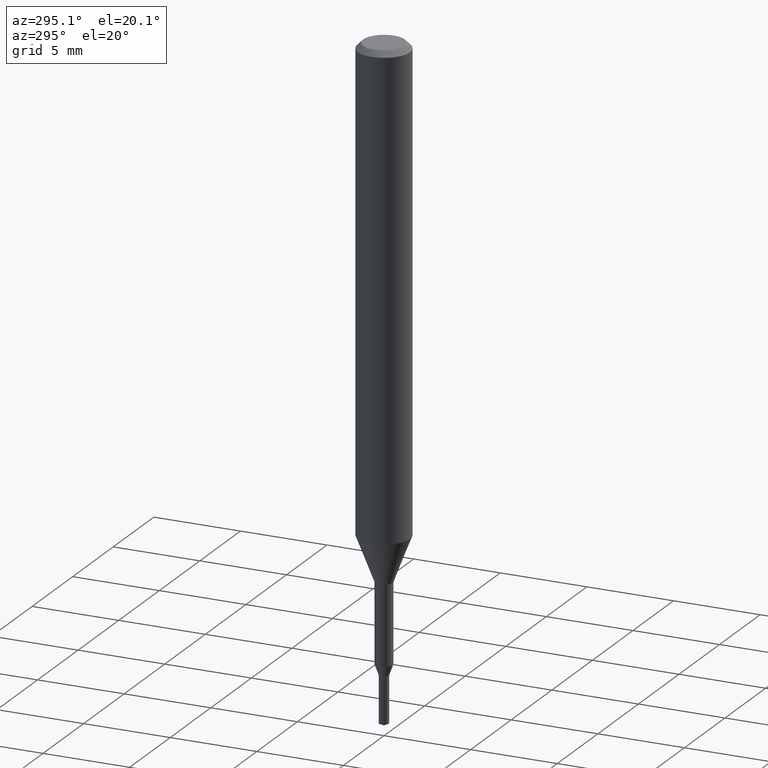
[diagram: clean part render]
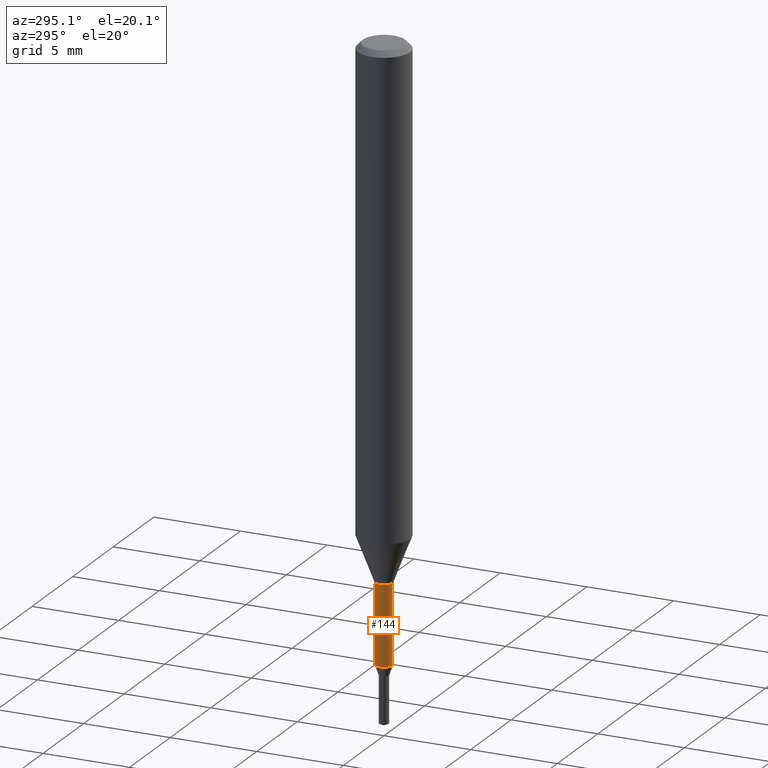
[diagram: same view with one face highlighted and labeled with its STEP entity id]
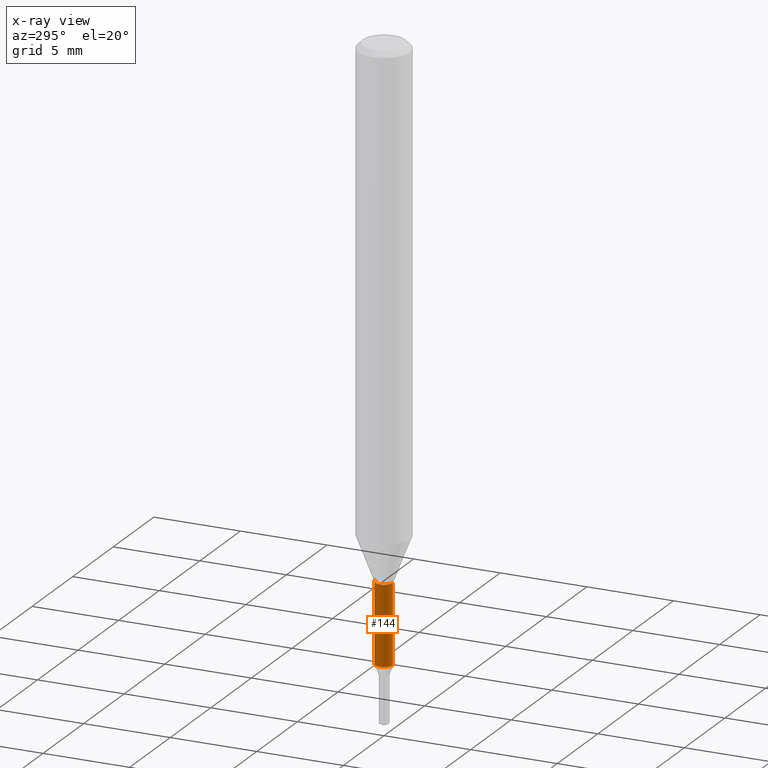
[diagram: x-ray of the same camera — body ghosted, the highlighted face saturated]
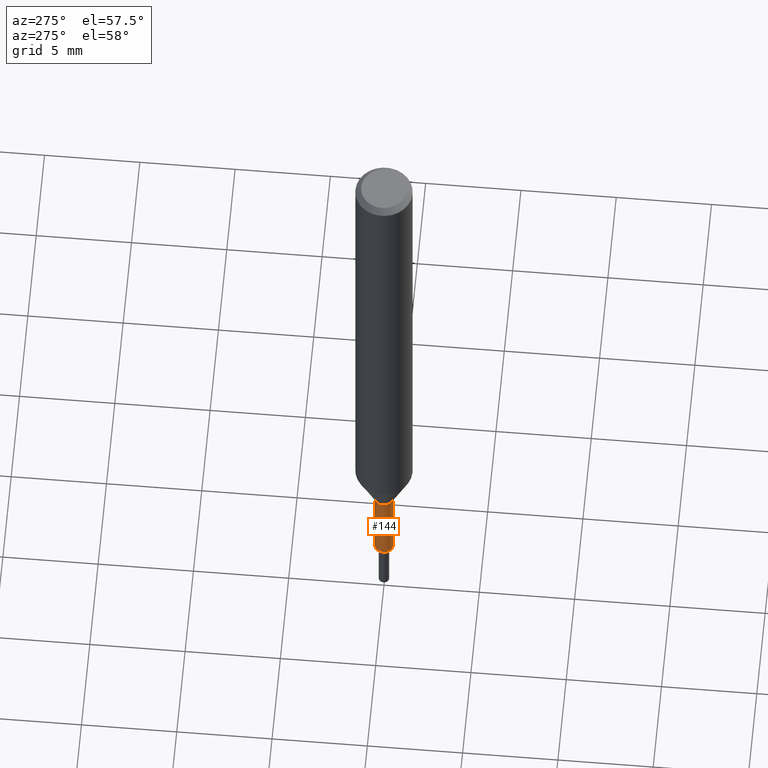
[diagram: same view with one face highlighted and labeled with its STEP entity id]
A machine part, auxiliary view. The second image highlights one B-rep face of the part: STEP entity #144.
The next image is the same camera in x-ray: the body ghosted, the highlighted face saturated — about 0% of this face is hidden behind the body in this view.
A second angle (auxiliary view) of the same face is appended — the face is thin or edge-on in the first view.
In plain terms, the highlighted cylindrical surface (edge-blend (fillet) strip) has radius 0.5 mm, axis along (-0, -0, 1).
Its self-contained STEP definition (entity closure, byte-faithful):
#144=ADVANCED_FACE('',(#324),#325,.T.);
#178=VERTEX_POINT('',#365);
#182=EDGE_CURVE('',#248,#236,#369,.T.);
#200=EDGE_CURVE('',#178,#248,#388,.T.);
#202=EDGE_CURVE('',#222,#236,#390,.T.);
#210=EDGE_CURVE('',#222,#178,#400,.T.);
#222=VERTEX_POINT('',#412);
#236=VERTEX_POINT('',#429);
#248=VERTEX_POINT('',#442);
#324=FACE_OUTER_BOUND('',#520,.T.);
#325=CYLINDRICAL_SURFACE('',#521,0.49995);
#365=CARTESIAN_POINT('',(6.12241946593498E-017,-0.49995,-30.0));
#369=LINE('',#573,#574);
#388=CIRCLE('',#603,0.49995);
#390=CIRCLE('',#606,0.49995);
#400=LINE('',#618,#619);
#412=CARTESIAN_POINT('',(6.12241946593498E-017,-0.49995,-34.582));
#429=CARTESIAN_POINT('',(0.0,0.49995,-34.582));
#442=CARTESIAN_POINT('',(0.0,0.49995,-30.0));
#520=EDGE_LOOP('',(#745,#746,#747,#748));
#521=AXIS2_PLACEMENT_3D('',#749,#750,#751);
#573=CARTESIAN_POINT('',(-6.12241946593498E-017,0.49995,-32.291));
#574=VECTOR('',#806,1.0);
#603=AXIS2_PLACEMENT_3D('',#827,#828,#829);
#606=AXIS2_PLACEMENT_3D('',#830,#831,#832);
#618=CARTESIAN_POINT('',(6.12241946593498E-017,-0.49995,-32.291));
#619=VECTOR('',#852,1.0);
#745=ORIENTED_EDGE('',*,*,#182,.T.);
#746=ORIENTED_EDGE('',*,*,#202,.F.);
#747=ORIENTED_EDGE('',*,*,#210,.T.);
#748=ORIENTED_EDGE('',*,*,#200,.T.);
#749=CARTESIAN_POINT('',(0.0,0.0,-32.291));
#750=DIRECTION('',(-0.0,-0.0,1.0));
#751=DIRECTION('',(0.0,1.0,0.0));
#806=DIRECTION('',(0.0,0.0,-1.0));
#827=CARTESIAN_POINT('',(0.0,0.0,-30.0));
#828=DIRECTION('',(0.0,0.0,-1.0));
#829=DIRECTION('',(0.0,1.0,0.0));
#830=CARTESIAN_POINT('',(0.0,0.0,-34.582));
#831=DIRECTION('',(0.0,0.0,-1.0));
#832=DIRECTION('',(0.0,1.0,0.0));
#852=DIRECTION('',(-0.0,-0.0,1.0));